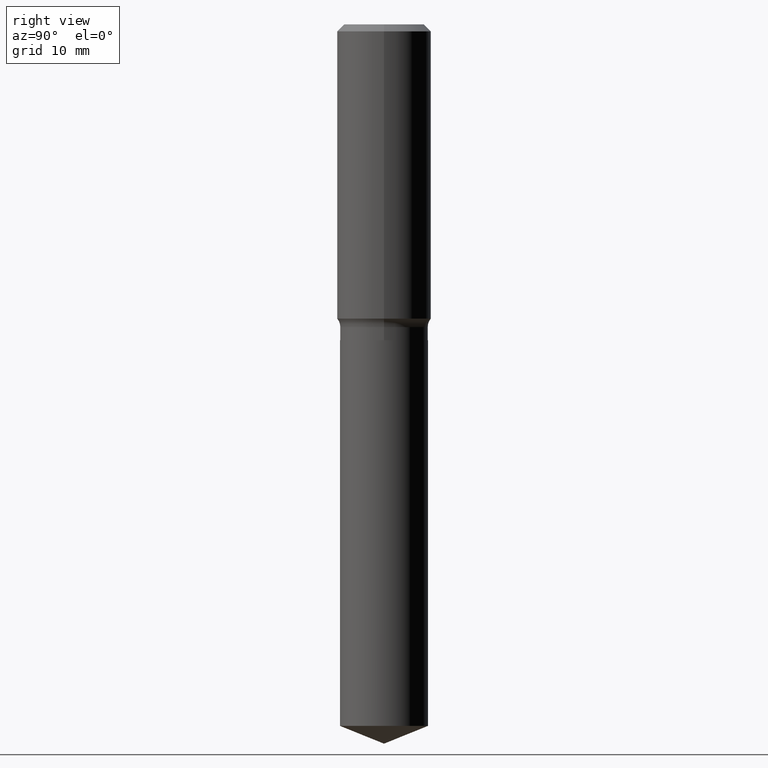
[diagram: clean part render]
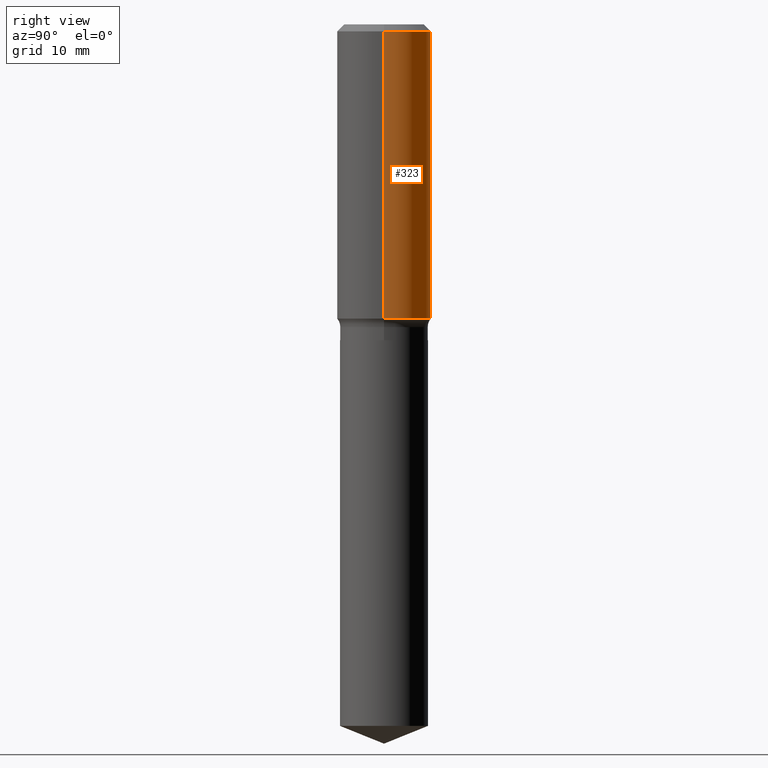
[diagram: same view with one face highlighted and labeled with its STEP entity id]
A machine part, right view. The second image highlights one B-rep face of the part: STEP entity #323.
In plain terms, the highlighted cylindrical surface (partial cylindrical patch) has radius 7.0002 mm, axis along (-0, 0, 1).
Its self-contained STEP definition (entity closure, byte-faithful):
#9 = CARTESIAN_POINT ( 'NONE',  ( 1.010956804476941697E-30, -1.443378385477765070E-16, -0.04134000000000025155 ) ) ;
#36 = ORIENTED_EDGE ( 'NONE', *, *, #251, .F. ) ;
#41 = EDGE_CURVE ( 'NONE', #338, #261, #156, .T. ) ;
#49 = FACE_OUTER_BOUND ( 'NONE', #188, .T. ) ;
#61 = DIRECTION ( 'NONE',  ( -2.445468806185136877E-29, 3.491481338843145188E-15, 1.000000000000000000 ) ) ;
#63 = VECTOR ( 'NONE', #424, 39.37007874015748143 ) ;
#68 = ORIENTED_EDGE ( 'NONE', *, *, #428, .T. ) ;
#115 = CIRCLE ( 'NONE', #124, 0.2756000000000002337 ) ;
#124 = AXIS2_PLACEMENT_3D ( 'NONE', #135, #299, #399 ) ;
#135 = CARTESIAN_POINT ( 'NONE',  ( 4.214770417940949508E-29, -6.017575126916126124E-15, -1.723502016170009643 ) ) ;
#141 = VERTEX_POINT ( 'NONE', #236 ) ;
#156 = LINE ( 'NONE', #201, #63 ) ;
#188 = EDGE_LOOP ( 'NONE', ( #68, #263, #36, #483 ) ) ;
#201 = CARTESIAN_POINT ( 'NONE',  ( -0.2756000000000001227, 1.958255779754836984E-15, -1.355658510874252567E-29 ) ) ;
#211 = DIRECTION ( 'NONE',  ( -2.445468806185136597E-29, 3.491481338843145583E-15, 1.000000000000000000 ) ) ;
#236 = CARTESIAN_POINT ( 'NONE',  ( 0.2756000000000000116, -2.068842352518111732E-15, -0.04134000000000025155 ) ) ;
#242 = CARTESIAN_POINT ( 'NONE',  ( 0.000000000000000000, 0.000000000000000000, 0.000000000000000000 ) ) ;
#245 = AXIS2_PLACEMENT_3D ( 'NONE', #9, #282, #354 ) ;
#251 = EDGE_CURVE ( 'NONE', #141, #261, #421, .T. ) ;
#261 = VERTEX_POINT ( 'NONE', #279 ) ;
#263 = ORIENTED_EDGE ( 'NONE', *, *, #41, .T. ) ;
#275 = VECTOR ( 'NONE', #61, 39.37007874015748143 ) ;
#279 = CARTESIAN_POINT ( 'NONE',  ( -0.2756000000000000116, -1.122700702977114270E-15, -0.04134000000000025155 ) ) ;
#282 = DIRECTION ( 'NONE',  ( -2.445468806185136597E-29, 3.491481338843145583E-15, 1.000000000000000000 ) ) ;
#284 = DIRECTION ( 'NONE',  ( 1.000000000000000000, -6.982962677686267499E-15, 4.876176775795935793E-29 ) ) ;
#292 = LINE ( 'NONE', #435, #275 ) ;
#299 = DIRECTION ( 'NONE',  ( -2.445468806185136597E-29, 3.491481338843145583E-15, 1.000000000000000000 ) ) ;
#323 = ADVANCED_FACE ( 'NONE', ( #49 ), #390, .T. ) ;
#332 = VERTEX_POINT ( 'NONE', #358 ) ;
#338 = VERTEX_POINT ( 'NONE', #429 ) ;
#354 = DIRECTION ( 'NONE',  ( 1.000000000000000000, -6.982962677686267499E-15, 0.000000000000000000 ) ) ;
#358 = CARTESIAN_POINT ( 'NONE',  ( 0.2756000000000002892, -7.942079640886463444E-15, -1.723502016170009643 ) ) ;
#390 = CYLINDRICAL_SURFACE ( 'NONE', #422, 0.2756000000000001227 ) ;
#399 = DIRECTION ( 'NONE',  ( 1.000000000000000000, -6.982962677686267499E-15, 0.000000000000000000 ) ) ;
#421 = CIRCLE ( 'NONE', #245, 0.2756000000000000116 ) ;
#422 = AXIS2_PLACEMENT_3D ( 'NONE', #242, #211, #284 ) ;
#424 = DIRECTION ( 'NONE',  ( -2.445468806185136877E-29, 3.491481338843145188E-15, 1.000000000000000000 ) ) ;
#428 = EDGE_CURVE ( 'NONE', #332, #338, #115, .T. ) ;
#429 = CARTESIAN_POINT ( 'NONE',  ( -0.2756000000000002892, -4.059319347161287957E-15, -1.723502016170009643 ) ) ;
#435 = CARTESIAN_POINT ( 'NONE',  ( 0.2756000000000001227, -1.924504513970336137E-15, 1.343874319409360548E-29 ) ) ;
#453 = EDGE_CURVE ( 'NONE', #332, #141, #292, .T. ) ;
#483 = ORIENTED_EDGE ( 'NONE', *, *, #453, .F. ) ;